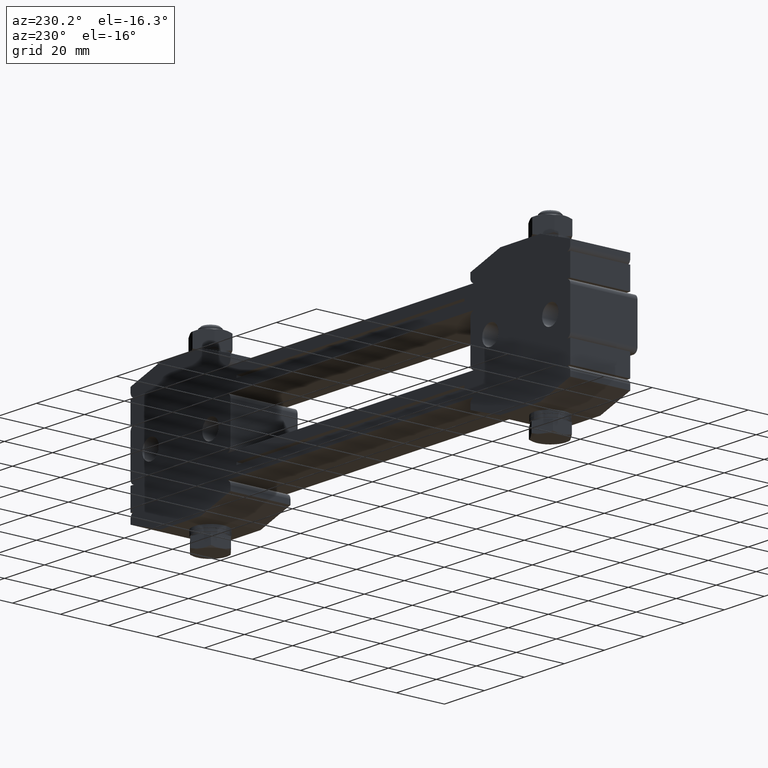
[diagram: clean part render]
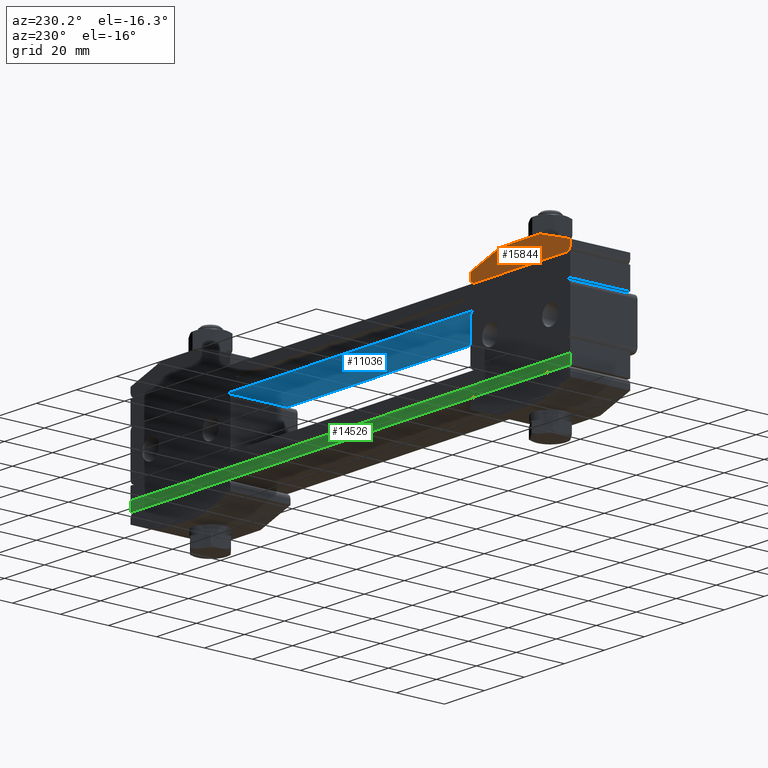
[diagram: same view with three faces highlighted in distinct colors, each labeled with its STEP entity id]
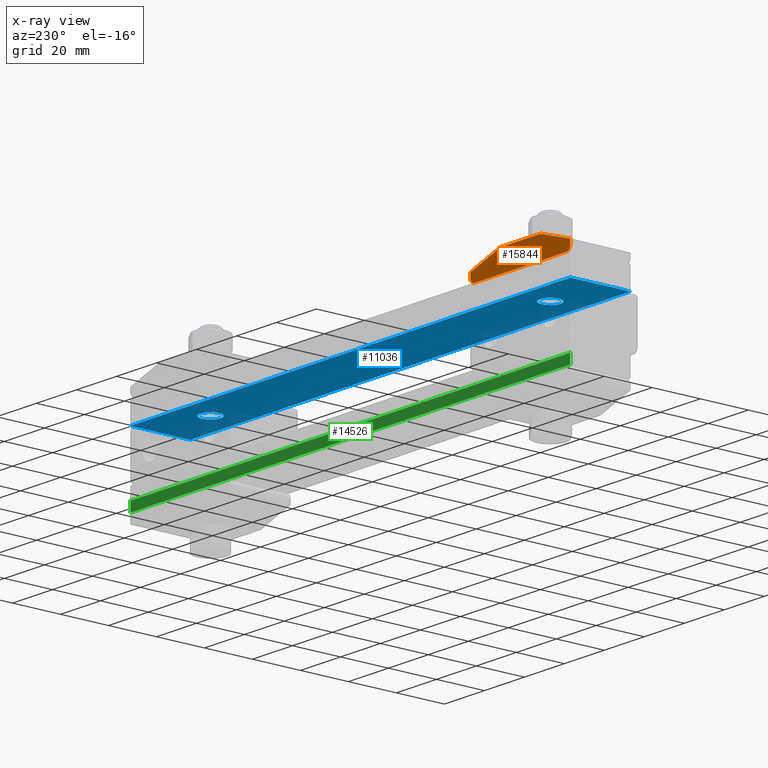
[diagram: x-ray of the same camera — body ghosted, the three highlighted faces saturated]
A machine part, auxiliary view with three faces highlighted in distinct colors.
The next image is the same camera in x-ray (body ghosted, the three faces saturated) — at least one of them is partly hidden behind the body in this view.
Their STEP definitions:

[orange] entity #15844 — the highlighted planar face has unit normal (-0, -1, 0).
#421 = DIRECTION ( 'NONE',  ( -5.519574696289830600E-017, -1.000000000000000000, 4.040289502454685300E-018 ) ) ;
#571 = DIRECTION ( 'NONE',  ( 1.387778780781446000E-017, 4.040289502454684500E-018, 1.000000000000000000 ) ) ;
#579 = CARTESIAN_POINT ( 'NONE',  ( -110.0000000000000000, 12.50000000000000000, 37.00000000000000000 ) ) ;
#594 = EDGE_CURVE ( 'NONE', #21587, #15912, #1665, .T. ) ;
#663 = EDGE_CURVE ( 'NONE', #991, #16655, #15185, .T. ) ;
#668 = DIRECTION ( 'NONE',  ( 0.9486832980505137700, -5.108563154370139500E-017, 0.3162277660168380000 ) ) ;
#820 = CARTESIAN_POINT ( 'NONE',  ( -111.1999999999999900, 12.50000000000000000, 36.60000000000000100 ) ) ;
#831 = ORIENTED_EDGE ( 'NONE', *, *, #19104, .F. ) ;
#991 = VERTEX_POINT ( 'NONE', #18093 ) ;
#1146 = LINE ( 'NONE', #5394, #22414 ) ;
#1318 = LINE ( 'NONE', #17444, #12040 ) ;
#1665 = LINE ( 'NONE', #2754, #12389 ) ;
#1693 = DIRECTION ( 'NONE',  ( 1.000000000000000000, -5.519574696289830600E-017, -1.387778780781446000E-017 ) ) ;
#1754 = ORIENTED_EDGE ( 'NONE', *, *, #15035, .T. ) ;
#2411 = CARTESIAN_POINT ( 'NONE',  ( -60.00000000000000000, 12.50000000000000000, 37.00000000000000000 ) ) ;
#2486 = VECTOR ( 'NONE', #22137, 1000.000000000000000 ) ;
#2525 = EDGE_LOOP ( 'NONE', ( #831, #14775, #19145, #10068, #18334, #1754, #5413, #10730 ) ) ;
#2754 = CARTESIAN_POINT ( 'NONE',  ( -110.0000000000000000, 12.50000000000000000, 33.00000000000000000 ) ) ;
#2910 = CARTESIAN_POINT ( 'NONE',  ( -110.0000000000000000, 12.50000000000000000, 33.00000000000000000 ) ) ;
#3215 = VERTEX_POINT ( 'NONE', #6248 ) ;
#4364 = EDGE_CURVE ( 'NONE', #3215, #18410, #1318, .T. ) ;
#4598 = AXIS2_PLACEMENT_3D ( 'NONE', #20475, #18644, #10053 ) ;
#5021 = PLANE ( 'NONE',  #6687 ) ;
#5394 = CARTESIAN_POINT ( 'NONE',  ( -110.0000000000000000, 12.50000000000000000, 42.00000000000000000 ) ) ;
#5413 = ORIENTED_EDGE ( 'NONE', *, *, #19126, .T. ) ;
#5448 = FACE_OUTER_BOUND ( 'NONE', #2525, .T. ) ;
#6214 = AXIS2_PLACEMENT_3D ( 'NONE', #12355, #17691, #19471 ) ;
#6248 = CARTESIAN_POINT ( 'NONE',  ( -75.00000000000000000, 12.50000000000000000, 42.00000000000000000 ) ) ;
#6687 = AXIS2_PLACEMENT_3D ( 'NONE', #10339, #421, #12920 ) ;
#6796 = CARTESIAN_POINT ( 'NONE',  ( -60.00000000000000000, 12.50000000000000000, 33.00000000000000000 ) ) ;
#8298 = VERTEX_POINT ( 'NONE', #16478 ) ;
#8588 = LINE ( 'NONE', #6796, #13570 ) ;
#8637 = CARTESIAN_POINT ( 'NONE',  ( -62.00000000000000000, 12.50000000000000000, 33.00000000000000000 ) ) ;
#10053 = DIRECTION ( 'NONE',  ( 0.0000000000000000000, 0.0000000000000000000, -1.000000000000000000 ) ) ;
#10068 = ORIENTED_EDGE ( 'NONE', *, *, #15372, .T. ) ;
#10339 = CARTESIAN_POINT ( 'NONE',  ( -110.0000000000000000, 12.50000000000000000, 33.00000000000000000 ) ) ;
#10730 = ORIENTED_EDGE ( 'NONE', *, *, #4364, .T. ) ;
#11424 = VERTEX_POINT ( 'NONE', #18198 ) ;
#11537 = CIRCLE ( 'NONE', #4598, 2.000000000000001800 ) ;
#11813 = CIRCLE ( 'NONE', #6214, 2.000000000000001800 ) ;
#12028 = DIRECTION ( 'NONE',  ( 0.9486832980505137700, -5.364093499054649400E-017, -0.3162277660168380000 ) ) ;
#12040 = VECTOR ( 'NONE', #12028, 999.9999999999998900 ) ;
#12355 = CARTESIAN_POINT ( 'NONE',  ( -108.0000000000000000, 12.50000000000000000, 35.00000000000000000 ) ) ;
#12389 = VECTOR ( 'NONE', #571, 1000.000000000000000 ) ;
#12920 = DIRECTION ( 'NONE',  ( -1.387778780781446000E-017, -4.040289502454684500E-018, -1.000000000000000000 ) ) ;
#13472 = CARTESIAN_POINT ( 'NONE',  ( -110.0000000000000000, 12.50000000000000000, 35.00000000000000000 ) ) ;
#13570 = VECTOR ( 'NONE', #22614, 1000.000000000000000 ) ;
#14775 = ORIENTED_EDGE ( 'NONE', *, *, #19995, .T. ) ;
#15035 = EDGE_CURVE ( 'NONE', #15912, #8298, #19326, .T. ) ;
#15185 = LINE ( 'NONE', #2910, #2486 ) ;
#15372 = EDGE_CURVE ( 'NONE', #991, #21587, #11813, .T. ) ;
#15844 = ADVANCED_FACE ( 'NONE', ( #5448 ), #5021, .F. ) ;
#15912 = VERTEX_POINT ( 'NONE', #579 ) ;
#16478 = CARTESIAN_POINT ( 'NONE',  ( -95.00000000000000000, 12.50000000000000000, 42.00000000000000000 ) ) ;
#16655 = VERTEX_POINT ( 'NONE', #8637 ) ;
#17444 = CARTESIAN_POINT ( 'NONE',  ( -103.8000000000000000, 12.50000000000000000, 51.60000000000000100 ) ) ;
#17691 = DIRECTION ( 'NONE',  ( 5.519574696289830000E-017, 1.000000000000000000, -4.040289502454684500E-018 ) ) ;
#18093 = CARTESIAN_POINT ( 'NONE',  ( -108.0000000000000000, 12.50000000000000000, 33.00000000000000000 ) ) ;
#18198 = CARTESIAN_POINT ( 'NONE',  ( -60.00000000000000000, 12.50000000000000000, 35.00000000000000000 ) ) ;
#18334 = ORIENTED_EDGE ( 'NONE', *, *, #594, .T. ) ;
#18410 = VERTEX_POINT ( 'NONE', #2411 ) ;
#18644 = DIRECTION ( 'NONE',  ( 5.519574696289830000E-017, 1.000000000000000000, -4.040289502454684500E-018 ) ) ;
#19104 = EDGE_CURVE ( 'NONE', #11424, #18410, #8588, .T. ) ;
#19126 = EDGE_CURVE ( 'NONE', #8298, #3215, #1146, .T. ) ;
#19145 = ORIENTED_EDGE ( 'NONE', *, *, #663, .F. ) ;
#19326 = LINE ( 'NONE', #820, #21841 ) ;
#19471 = DIRECTION ( 'NONE',  ( 0.0000000000000000000, 0.0000000000000000000, -1.000000000000000000 ) ) ;
#19995 = EDGE_CURVE ( 'NONE', #11424, #16655, #11537, .T. ) ;
#20475 = CARTESIAN_POINT ( 'NONE',  ( -62.00000000000000000, 12.50000000000000000, 35.00000000000000000 ) ) ;
#21587 = VERTEX_POINT ( 'NONE', #13472 ) ;
#21841 = VECTOR ( 'NONE', #668, 999.9999999999998900 ) ;
#22137 = DIRECTION ( 'NONE',  ( 1.000000000000000000, -5.519574696289830600E-017, -1.387778780781446000E-017 ) ) ;
#22414 = VECTOR ( 'NONE', #1693, 1000.000000000000000 ) ;
#22614 = DIRECTION ( 'NONE',  ( 1.387778780781446000E-017, 4.040289502454684500E-018, 1.000000000000000000 ) ) ;

[blue] entity #11036 — the highlighted planar face has unit normal (0, 0, 1).
#739 = AXIS2_PLACEMENT_3D ( 'NONE', #7249, #4310, #2084 ) ;
#765 = CARTESIAN_POINT ( 'NONE',  ( 85.00000000000000000, 1.951563910473909900E-014, 24.00000000000000000 ) ) ;
#936 = LINE ( 'NONE', #11754, #15808 ) ;
#985 = VECTOR ( 'NONE', #9980, 1000.000000000000000 ) ;
#1296 = ORIENTED_EDGE ( 'NONE', *, *, #11579, .F. ) ;
#1714 = CARTESIAN_POINT ( 'NONE',  ( -80.75000000000000000, -7.821940206037071300E-016, 24.00000000000000000 ) ) ;
#1965 = DIRECTION ( 'NONE',  ( 0.0000000000000000000, 1.000000000000000000, 0.0000000000000000000 ) ) ;
#2084 = DIRECTION ( 'NONE',  ( -1.000000000000000000, 0.0000000000000000000, 0.0000000000000000000 ) ) ;
#2176 = EDGE_CURVE ( 'NONE', #8010, #15465, #13132, .T. ) ;
#2522 = ORIENTED_EDGE ( 'NONE', *, *, #13346, .F. ) ;
#2923 = DIRECTION ( 'NONE',  ( 0.0000000000000000000, -1.000000000000000000, 0.0000000000000000000 ) ) ;
#3156 = CARTESIAN_POINT ( 'NONE',  ( -110.0000000000000000, -12.50000000000000000, 24.00000000000000000 ) ) ;
#3182 = CARTESIAN_POINT ( 'NONE',  ( 80.75000000000000000, 1.951563910473909900E-014, 24.00000000000000000 ) ) ;
#4156 = CARTESIAN_POINT ( 'NONE',  ( -89.25000000000001400, -1.302668910241332000E-015, 24.00000000000000000 ) ) ;
#4310 = DIRECTION ( 'NONE',  ( 0.0000000000000000000, 0.0000000000000000000, -1.000000000000000000 ) ) ;
#4521 = CIRCLE ( 'NONE', #14374, 4.250000000000003600 ) ;
#4656 = ORIENTED_EDGE ( 'NONE', *, *, #5165, .F. ) ;
#5165 = EDGE_CURVE ( 'NONE', #18702, #9152, #10638, .T. ) ;
#5580 = CARTESIAN_POINT ( 'NONE',  ( 110.0000000000000000, -12.50000000000000000, 24.00000000000000000 ) ) ;
#6387 = DIRECTION ( 'NONE',  ( 0.0000000000000000000, 0.0000000000000000000, -1.000000000000000000 ) ) ;
#6455 = DIRECTION ( 'NONE',  ( -1.000000000000000000, 0.0000000000000000000, 0.0000000000000000000 ) ) ;
#6562 = EDGE_LOOP ( 'NONE', ( #1296, #13831, #21951, #16172 ) ) ;
#6575 = DIRECTION ( 'NONE',  ( 1.000000000000000000, 0.0000000000000000000, 0.0000000000000000000 ) ) ;
#6750 = ORIENTED_EDGE ( 'NONE', *, *, #13568, .F. ) ;
#6963 = CIRCLE ( 'NONE', #739, 4.250000000000003600 ) ;
#7035 = CARTESIAN_POINT ( 'NONE',  ( -110.0000000000000000, -12.50000000000000000, 24.00000000000000000 ) ) ;
#7249 = CARTESIAN_POINT ( 'NONE',  ( -85.00000000000000000, -1.302668910241332000E-015, 24.00000000000000000 ) ) ;
#8010 = VERTEX_POINT ( 'NONE', #7035 ) ;
#8489 = DIRECTION ( 'NONE',  ( 0.0000000000000000000, 0.0000000000000000000, 1.000000000000000000 ) ) ;
#8634 = AXIS2_PLACEMENT_3D ( 'NONE', #16921, #6387, #6455 ) ;
#8871 = LINE ( 'NONE', #13180, #11068 ) ;
#9152 = VERTEX_POINT ( 'NONE', #3182 ) ;
#9916 = VECTOR ( 'NONE', #1965, 1000.000000000000000 ) ;
#9980 = DIRECTION ( 'NONE',  ( 1.000000000000000000, 0.0000000000000000000, 0.0000000000000000000 ) ) ;
#10328 = VERTEX_POINT ( 'NONE', #4156 ) ;
#10638 = CIRCLE ( 'NONE', #17746, 4.250000000000003600 ) ;
#10788 = AXIS2_PLACEMENT_3D ( 'NONE', #3156, #8489, #6575 ) ;
#11036 = ADVANCED_FACE ( 'NONE', ( #15852, #16686, #11708 ), #13715, .F. ) ;
#11068 = VECTOR ( 'NONE', #14944, 1000.000000000000000 ) ;
#11303 = DIRECTION ( 'NONE',  ( 0.0000000000000000000, 0.0000000000000000000, -1.000000000000000000 ) ) ;
#11579 = EDGE_CURVE ( 'NONE', #19821, #8010, #936, .T. ) ;
#11640 = CIRCLE ( 'NONE', #8634, 4.250000000000003600 ) ;
#11708 = FACE_OUTER_BOUND ( 'NONE', #6562, .T. ) ;
#11754 = CARTESIAN_POINT ( 'NONE',  ( -110.0000000000000000, 12.50000000000000000, 24.00000000000000000 ) ) ;
#12982 = EDGE_LOOP ( 'NONE', ( #13782, #2522 ) ) ;
#13132 = LINE ( 'NONE', #20256, #985 ) ;
#13179 = DIRECTION ( 'NONE',  ( -1.000000000000000000, 0.0000000000000000000, 0.0000000000000000000 ) ) ;
#13180 = CARTESIAN_POINT ( 'NONE',  ( -110.0000000000000000, 12.50000000000000000, 24.00000000000000000 ) ) ;
#13346 = EDGE_CURVE ( 'NONE', #18125, #10328, #4521, .T. ) ;
#13568 = EDGE_CURVE ( 'NONE', #9152, #18702, #11640, .T. ) ;
#13715 = PLANE ( 'NONE',  #10788 ) ;
#13782 = ORIENTED_EDGE ( 'NONE', *, *, #19265, .F. ) ;
#13831 = ORIENTED_EDGE ( 'NONE', *, *, #19297, .F. ) ;
#14293 = CARTESIAN_POINT ( 'NONE',  ( 110.0000000000000000, 12.50000000000000000, 24.00000000000000000 ) ) ;
#14374 = AXIS2_PLACEMENT_3D ( 'NONE', #19168, #19080, #20948 ) ;
#14944 = DIRECTION ( 'NONE',  ( -1.000000000000000000, 5.519574696289839900E-017, 0.0000000000000000000 ) ) ;
#15296 = EDGE_CURVE ( 'NONE', #15465, #19140, #18763, .T. ) ;
#15465 = VERTEX_POINT ( 'NONE', #5580 ) ;
#15808 = VECTOR ( 'NONE', #2923, 1000.000000000000000 ) ;
#15852 = FACE_BOUND ( 'NONE', #12982, .T. ) ;
#16014 = CARTESIAN_POINT ( 'NONE',  ( 110.0000000000000000, 12.50000000000000000, 24.00000000000000000 ) ) ;
#16172 = ORIENTED_EDGE ( 'NONE', *, *, #2176, .F. ) ;
#16218 = CARTESIAN_POINT ( 'NONE',  ( -110.0000000000000000, 12.50000000000000000, 24.00000000000000000 ) ) ;
#16686 = FACE_BOUND ( 'NONE', #20829, .T. ) ;
#16921 = CARTESIAN_POINT ( 'NONE',  ( 85.00000000000000000, 1.951563910473909900E-014, 24.00000000000000000 ) ) ;
#17746 = AXIS2_PLACEMENT_3D ( 'NONE', #765, #11303, #13179 ) ;
#18125 = VERTEX_POINT ( 'NONE', #1714 ) ;
#18702 = VERTEX_POINT ( 'NONE', #21086 ) ;
#18763 = LINE ( 'NONE', #14293, #9916 ) ;
#19080 = DIRECTION ( 'NONE',  ( 0.0000000000000000000, 0.0000000000000000000, -1.000000000000000000 ) ) ;
#19140 = VERTEX_POINT ( 'NONE', #16014 ) ;
#19168 = CARTESIAN_POINT ( 'NONE',  ( -85.00000000000000000, -1.302668910241332000E-015, 24.00000000000000000 ) ) ;
#19265 = EDGE_CURVE ( 'NONE', #10328, #18125, #6963, .T. ) ;
#19297 = EDGE_CURVE ( 'NONE', #19140, #19821, #8871, .T. ) ;
#19821 = VERTEX_POINT ( 'NONE', #16218 ) ;
#20256 = CARTESIAN_POINT ( 'NONE',  ( -110.0000000000000000, -12.50000000000000000, 24.00000000000000000 ) ) ;
#20829 = EDGE_LOOP ( 'NONE', ( #6750, #4656 ) ) ;
#20948 = DIRECTION ( 'NONE',  ( -1.000000000000000000, 0.0000000000000000000, 0.0000000000000000000 ) ) ;
#21086 = CARTESIAN_POINT ( 'NONE',  ( 89.25000000000001400, 2.003611399437672300E-014, 24.00000000000000000 ) ) ;
#21951 = ORIENTED_EDGE ( 'NONE', *, *, #15296, .F. ) ;

[green] entity #14526 — the highlighted planar face has unit normal (-0, -1, 0).
#977 = VECTOR ( 'NONE', #12693, 1000.000000000000000 ) ;
#1711 = LINE ( 'NONE', #19861, #13554 ) ;
#1845 = VERTEX_POINT ( 'NONE', #3458 ) ;
#1956 = FACE_OUTER_BOUND ( 'NONE', #18606, .T. ) ;
#2403 = DIRECTION ( 'NONE',  ( -5.519574696289839900E-017, -1.000000000000000000, 0.0000000000000000000 ) ) ;
#3173 = LINE ( 'NONE', #5921, #977 ) ;
#3458 = CARTESIAN_POINT ( 'NONE',  ( 110.0000000000000000, 12.50000000000000000, -1.000000000000000000 ) ) ;
#3564 = ORIENTED_EDGE ( 'NONE', *, *, #5465, .T. ) ;
#3671 = EDGE_CURVE ( 'NONE', #14749, #10625, #1711, .T. ) ;
#5225 = CARTESIAN_POINT ( 'NONE',  ( -110.0000000000000000, 12.50000000000000000, -1.000000000000000000 ) ) ;
#5313 = ORIENTED_EDGE ( 'NONE', *, *, #22488, .F. ) ;
#5465 = EDGE_CURVE ( 'NONE', #1845, #8608, #3173, .T. ) ;
#5710 = ORIENTED_EDGE ( 'NONE', *, *, #6276, .T. ) ;
#5715 = CARTESIAN_POINT ( 'NONE',  ( -110.0000000000000000, 12.50000000000000000, -5.000000000000000000 ) ) ;
#5921 = CARTESIAN_POINT ( 'NONE',  ( 110.0000000000000000, 12.50000000000000000, -1.000000000000000000 ) ) ;
#6276 = EDGE_CURVE ( 'NONE', #8608, #10625, #14993, .T. ) ;
#7795 = ORIENTED_EDGE ( 'NONE', *, *, #3671, .F. ) ;
#8608 = VERTEX_POINT ( 'NONE', #16288 ) ;
#9112 = CARTESIAN_POINT ( 'NONE',  ( -110.0000000000000000, 12.50000000000000000, -5.000000000000000000 ) ) ;
#9724 = LINE ( 'NONE', #16266, #19372 ) ;
#9937 = DIRECTION ( 'NONE',  ( 1.000000000000000000, -5.519574696289839900E-017, 0.0000000000000000000 ) ) ;
#10625 = VERTEX_POINT ( 'NONE', #9112 ) ;
#12693 = DIRECTION ( 'NONE',  ( 0.0000000000000000000, 0.0000000000000000000, -1.000000000000000000 ) ) ;
#12783 = VECTOR ( 'NONE', #19808, 1000.000000000000000 ) ;
#13554 = VECTOR ( 'NONE', #18103, 1000.000000000000000 ) ;
#14526 = ADVANCED_FACE ( 'NONE', ( #1956 ), #18136, .F. ) ;
#14749 = VERTEX_POINT ( 'NONE', #5225 ) ;
#14993 = LINE ( 'NONE', #5715, #12783 ) ;
#16189 = DIRECTION ( 'NONE',  ( -1.000000000000000000, 5.519574696289839900E-017, 0.0000000000000000000 ) ) ;
#16266 = CARTESIAN_POINT ( 'NONE',  ( -110.0000000000000000, 12.50000000000000000, -1.000000000000000000 ) ) ;
#16288 = CARTESIAN_POINT ( 'NONE',  ( 110.0000000000000000, 12.50000000000000000, -5.000000000000000000 ) ) ;
#16874 = AXIS2_PLACEMENT_3D ( 'NONE', #20509, #2403, #9937 ) ;
#18103 = DIRECTION ( 'NONE',  ( 0.0000000000000000000, 0.0000000000000000000, -1.000000000000000000 ) ) ;
#18136 = PLANE ( 'NONE',  #16874 ) ;
#18606 = EDGE_LOOP ( 'NONE', ( #5710, #7795, #5313, #3564 ) ) ;
#19372 = VECTOR ( 'NONE', #16189, 1000.000000000000000 ) ;
#19808 = DIRECTION ( 'NONE',  ( -1.000000000000000000, 5.519574696289839900E-017, 0.0000000000000000000 ) ) ;
#19861 = CARTESIAN_POINT ( 'NONE',  ( -110.0000000000000000, 12.50000000000000000, -1.000000000000000000 ) ) ;
#20509 = CARTESIAN_POINT ( 'NONE',  ( -110.0000000000000000, 12.50000000000000000, -1.000000000000000000 ) ) ;
#22488 = EDGE_CURVE ( 'NONE', #1845, #14749, #9724, .T. ) ;